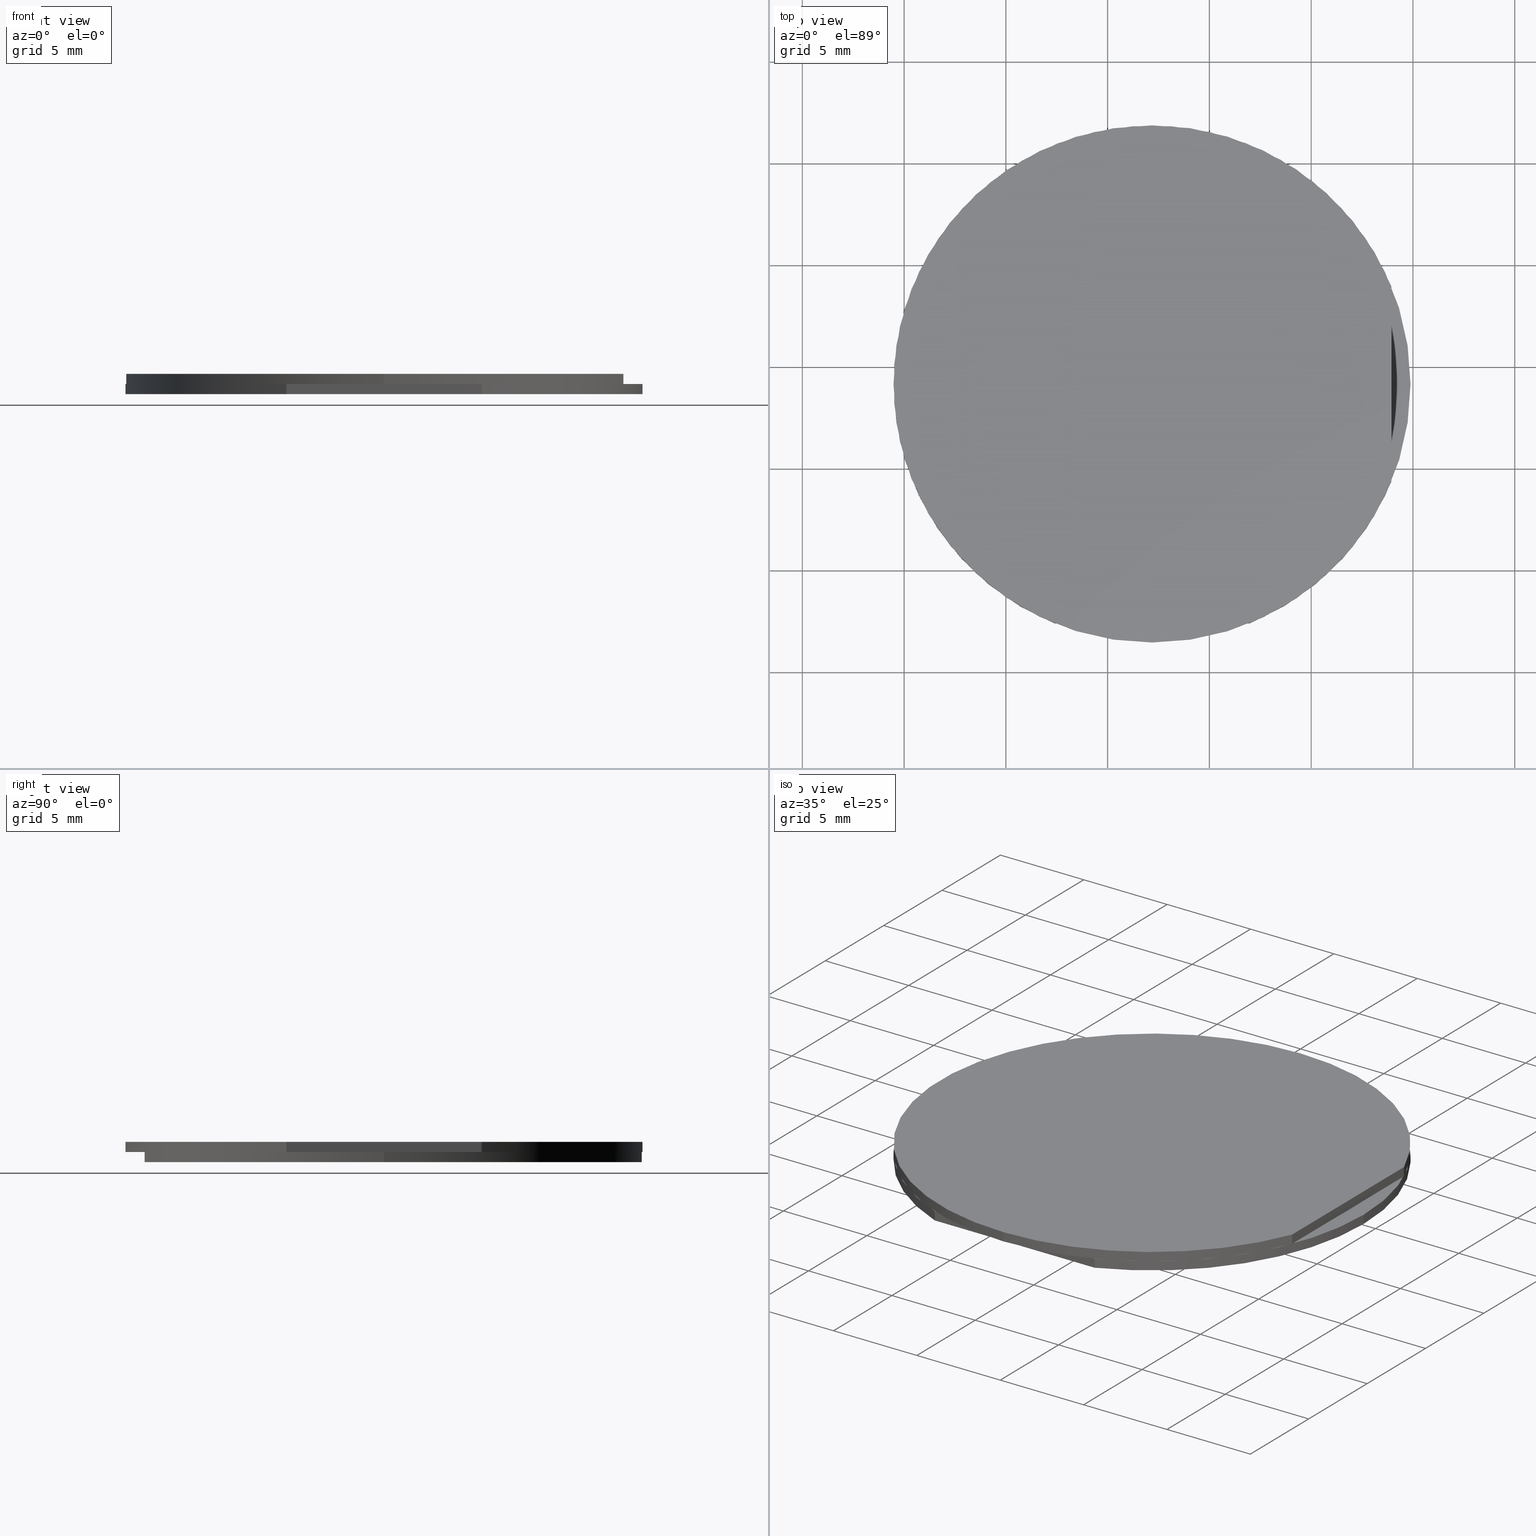
[diagram: canonical four-view strip — front | top / right | iso, engineering-drawing reading convention]
A machine part, canonical four-view strip (front | top / right | iso — engineering-drawing reading convention). The complete STEP part file that produces these views, byte-faithful:
ISO-10303-21;
HEADER;
FILE_DESCRIPTION (( 'STEP AP214' ),
    '1' );
FILE_NAME ('334001.STEP',
    '2020-08-21T08:45:31',
    ( '' ),
    ( '' ),
    'SwSTEP 2.0',
    'SolidWorks 2019',
    '' );
FILE_SCHEMA (( 'AUTOMOTIVE_DESIGN' ));
ENDSEC;

DATA;
#1 = DIRECTION ( 'NONE',  ( 1.000000000000000000, 0.0000000000000000000, 0.0000000000000000000 ) ) ;
#2 = SURFACE_STYLE_USAGE ( .BOTH. , #423 ) ;
#3 = VERTEX_POINT ( 'NONE', #303 ) ;
#4 = COLOUR_RGB ( '',1.000000000000000000, 1.000000000000000000, 1.000000000000000000 ) ;
#5 =( NAMED_UNIT ( * ) PLANE_ANGLE_UNIT ( ) SI_UNIT ( $, .RADIAN. ) );
#6 = CARTESIAN_POINT ( 'NONE',  ( 23.93957565082418171, -6.717240688047030339, 3.986184743181585777 ) ) ;
#7 = PRODUCT ( '334001', '334001', '', ( #403 ) ) ;
#8 = COLOUR_RGB ( '',1.000000000000000000, 1.000000000000000000, 1.000000000000000000 ) ;
#9 = COLOUR_RGB ( '',1.000000000000000000, 1.000000000000000000, 1.000000000000000000 ) ;
#10 = SURFACE_STYLE_FILL_AREA ( #273 ) ;
#11 = PRESENTATION_STYLE_ASSIGNMENT (( #435 ) ) ;
#12 = DIRECTION ( 'NONE',  ( 0.0000000000000000000, 0.0000000000000000000, 1.000000000000000000 ) ) ;
#13 = PLANE ( 'NONE',  #164 ) ;
#14 = DIRECTION ( 'NONE',  ( -1.365923996832131609E-16, -1.000000000000000000, 0.0000000000000000000 ) ) ;
#15 = COLOUR_RGB ( '',1.000000000000000000, 1.000000000000000000, 1.000000000000000000 ) ;
#16 = MECHANICAL_DESIGN_GEOMETRIC_PRESENTATION_REPRESENTATION (  '', ( #94 ), #183 ) ;
#17 = CARTESIAN_POINT ( 'NONE',  ( 12.17957565082418014, -0.8299026143560144231, 4.486184743181586221 ) ) ;
#18 = CARTESIAN_POINT ( 'NONE',  ( 12.17957565082418014, -0.8299026143560144231, 4.486184743181586221 ) ) ;
#19 = DIRECTION ( 'NONE',  ( 1.000000000000000000, 0.0000000000000000000, 0.0000000000000000000 ) ) ;
#20 = DIRECTION ( 'NONE',  ( 0.0000000000000000000, 0.0000000000000000000, 1.000000000000000000 ) ) ;
#21 = CARTESIAN_POINT ( 'NONE',  ( 24.87957565082417943, -0.8299026143560128688, 3.986184743181585777 ) ) ;
#22 = PLANE ( 'NONE',  #499 ) ;
#23 = ADVANCED_FACE ( 'NONE', ( #385 ), #222, .T. ) ;
#24 = DIRECTION ( 'NONE',  ( 0.0000000000000000000, -0.0000000000000000000, -1.000000000000000000 ) ) ;
#25 = CYLINDRICAL_SURFACE ( 'NONE', #237, 12.69999999999999929 ) ;
#26 = CARTESIAN_POINT ( 'NONE',  ( 12.17957565082418014, -0.8299026143560144231, 3.986184743181585777 ) ) ;
#27 = STYLED_ITEM ( 'NONE', ( #465 ), #57 ) ;
#28 = PRESENTATION_LAYER_ASSIGNMENT (  '', '', ( #211 ) ) ;
#29 = SURFACE_STYLE_USAGE ( .BOTH. , #78 ) ;
#30 = DIRECTION ( 'NONE',  ( 0.0000000000000000000, 0.0000000000000000000, 1.000000000000000000 ) ) ;
#31 =( NAMED_UNIT ( * ) SI_UNIT ( $, .STERADIAN. ) SOLID_ANGLE_UNIT ( ) );
#32 = DIRECTION ( 'NONE',  ( -1.000000000000000000, 0.0000000000000000000, 0.0000000000000000000 ) ) ;
#33 = EDGE_CURVE ( 'NONE', #172, #124, #177, .T. ) ;
#34 = ORIENTED_EDGE ( 'NONE', *, *, #255, .T. ) ;
#35 = FILL_AREA_STYLE_COLOUR ( '', #467 ) ;
#36 = EDGE_CURVE ( 'NONE', #44, #383, #559, .T. ) ;
#37 = VERTEX_POINT ( 'NONE', #345 ) ;
#38 = CARTESIAN_POINT ( 'NONE',  ( 23.93957565082418171, 3.965136488717075469, 4.486184743181586221 ) ) ;
#39 = VECTOR ( 'NONE', #156, 1000.000000000000000 ) ;
#40 = CLOSED_SHELL ( 'NONE', ( #23, #413, #409, #554, #168, #76 ) ) ;
#41 = ORIENTED_EDGE ( 'NONE', *, *, #81, .T. ) ;
#42 = VERTEX_POINT ( 'NONE', #308 ) ;
#43 = EDGE_CURVE ( 'NONE', #44, #133, #136, .T. ) ;
#44 = VERTEX_POINT ( 'NONE', #350 ) ;
#45 = SURFACE_SIDE_STYLE ('',( #91 ) ) ;
#46 = MECHANICAL_DESIGN_GEOMETRIC_PRESENTATION_REPRESENTATION (  '', ( #412 ), #376 ) ;
#47 = DIRECTION ( 'NONE',  ( 1.000000000000000000, 0.0000000000000000000, -0.0000000000000000000 ) ) ;
#48 = PRODUCT_RELATED_PRODUCT_CATEGORY ( 'part', '', ( #7 ) ) ;
#49 = ORIENTED_EDGE ( 'NONE', *, *, #447, .T. ) ;
#50 =( NAMED_UNIT ( * ) SI_UNIT ( $, .STERADIAN. ) SOLID_ANGLE_UNIT ( ) );
#51 = FILL_AREA_STYLE_COLOUR ( '', #103 ) ;
#52 = VECTOR ( 'NONE', #453, 1000.000000000000000 ) ;
#53 = ADVANCED_BREP_SHAPE_REPRESENTATION ( '334001', ( #111, #466, #60 ), #266 ) ;
#54 =( NAMED_UNIT ( * ) PLANE_ANGLE_UNIT ( ) SI_UNIT ( $, .RADIAN. ) );
#55 = CIRCLE ( 'NONE', #543, 12.69999999999999929 ) ;
#56 = DIRECTION ( 'NONE',  ( 0.0000000000000000000, 0.0000000000000000000, 1.000000000000000000 ) ) ;
#57 = ADVANCED_FACE ( 'NONE', ( #471 ), #101, .F. ) ;
#58 = DIRECTION ( 'NONE',  ( -0.0000000000000000000, -0.0000000000000000000, -1.000000000000000000 ) ) ;
#59 = VECTOR ( 'NONE', #544, 1000.000000000000000 ) ;
#60 = AXIS2_PLACEMENT_3D ( 'NONE', #408, #394, #19 ) ;
#61 = DIRECTION ( 'NONE',  ( 0.0000000000000000000, 0.0000000000000000000, 1.000000000000000000 ) ) ;
#62 = CIRCLE ( 'NONE', #249, 12.69999999999999929 ) ;
#63 = LINE ( 'NONE', #374, #275 ) ;
#64 =( NAMED_UNIT ( * ) SI_UNIT ( $, .STERADIAN. ) SOLID_ANGLE_UNIT ( ) );
#65 = EDGE_CURVE ( 'NONE', #551, #133, #62, .T. ) ;
#66 = SURFACE_STYLE_FILL_AREA ( #483 ) ;
#67 = UNCERTAINTY_MEASURE_WITH_UNIT (LENGTH_MEASURE( 1.000000000000000082E-05 ), #457, 'distance_accuracy_value', 'NONE');
#68 = PRESENTATION_STYLE_ASSIGNMENT (( #29 ) ) ;
#69 = CARTESIAN_POINT ( 'NONE',  ( 12.17957565082418014, -12.58990261435601354, 3.486184743181585333 ) ) ;
#70 = DIRECTION ( 'NONE',  ( 0.0000000000000000000, 0.0000000000000000000, 1.000000000000000000 ) ) ;
#71 = CYLINDRICAL_SURFACE ( 'NONE', #323, 12.69999999999999929 ) ;
#72 = CIRCLE ( 'NONE', #144, 12.69999999999999929 ) ;
#73 = CARTESIAN_POINT ( 'NONE',  ( 12.17957565082418014, -0.8299026143560144231, 3.486184743181585333 ) ) ;
#74 = FILL_AREA_STYLE_COLOUR ( '', #307 ) ;
#75 = MECHANICAL_DESIGN_GEOMETRIC_PRESENTATION_REPRESENTATION (  '', ( #189 ), #140 ) ;
#76 = ADVANCED_FACE ( 'NONE', ( #348 ), #139, .F. ) ;
#77 = PRESENTATION_LAYER_ASSIGNMENT (  '', '', ( #27 ) ) ;
#78 = SURFACE_SIDE_STYLE ('',( #166 ) ) ;
#79 =( NAMED_UNIT ( * ) PLANE_ANGLE_UNIT ( ) SI_UNIT ( $, .RADIAN. ) );
#80 = ORIENTED_EDGE ( 'NONE', *, *, #402, .T. ) ;
#81 = EDGE_CURVE ( 'NONE', #42, #461, #181, .T. ) ;
#82 = CARTESIAN_POINT ( 'NONE',  ( 23.93957565082418171, -5.624941717429107868, 4.486184743181586221 ) ) ;
#83 = ORIENTED_EDGE ( 'NONE', *, *, #518, .F. ) ;
#84 = DIRECTION ( 'NONE',  ( 0.0000000000000000000, 0.0000000000000000000, 1.000000000000000000 ) ) ;
#85 = ORIENTED_EDGE ( 'NONE', *, *, #36, .T. ) ;
#86 = LINE ( 'NONE', #38, #52 ) ;
#87 = STYLED_ITEM ( 'NONE', ( #231 ), #466 ) ;
#88 = ORIENTED_EDGE ( 'NONE', *, *, #369, .F. ) ;
#89 = DIRECTION ( 'NONE',  ( 1.110223024625156294E-16, 1.000000000000000000, 0.0000000000000000000 ) ) ;
#90 = ORIENTED_EDGE ( 'NONE', *, *, #106, .T. ) ;
#91 = SURFACE_STYLE_FILL_AREA ( #553 ) ;
#92 = CARTESIAN_POINT ( 'NONE',  ( 6.292237577133167115, -12.58990261435601354, 3.986184743181585777 ) ) ;
#93 = EDGE_LOOP ( 'NONE', ( #449, #49, #247, #462 ) ) ;
#94 = STYLED_ITEM ( 'NONE', ( #517 ), #23 ) ;
#95 = DIRECTION ( 'NONE',  ( 0.0000000000000000000, -0.0000000000000000000, -1.000000000000000000 ) ) ;
#96 = PRESENTATION_LAYER_ASSIGNMENT (  '', '', ( #541 ) ) ;
#97 = DIRECTION ( 'NONE',  ( -1.000000000000000000, 1.110223024625156294E-16, 0.0000000000000000000 ) ) ;
#98 =( LENGTH_UNIT ( ) NAMED_UNIT ( * ) SI_UNIT ( .MILLI., .METRE. ) );
#99 = FILL_AREA_STYLE ('',( #519 ) ) ;
#100 = PRESENTATION_STYLE_ASSIGNMENT (( #472 ) ) ;
#101 = PLANE ( 'NONE',  #147 ) ;
#102 = STYLED_ITEM ( 'NONE', ( #100 ), #473 ) ;
#103 = COLOUR_RGB ( '',1.000000000000000000, 1.000000000000000000, 1.000000000000000000 ) ;
#104 =( NAMED_UNIT ( * ) PLANE_ANGLE_UNIT ( ) SI_UNIT ( $, .RADIAN. ) );
#105 =( GEOMETRIC_REPRESENTATION_CONTEXT ( 3 ) GLOBAL_UNCERTAINTY_ASSIGNED_CONTEXT ( ( #448 ) ) GLOBAL_UNIT_ASSIGNED_CONTEXT ( ( #316, #281, #397 ) ) REPRESENTATION_CONTEXT ( 'NONE', 'WORKASPACE' ) );
#106 = EDGE_CURVE ( 'NONE', #295, #417, #152, .T. ) ;
#107 = FILL_AREA_STYLE ('',( #477 ) ) ;
#108 =( NAMED_UNIT ( * ) PLANE_ANGLE_UNIT ( ) SI_UNIT ( $, .RADIAN. ) );
#109 = DIRECTION ( 'NONE',  ( 0.0000000000000000000, 0.0000000000000000000, 1.000000000000000000 ) ) ;
#110 = DIRECTION ( 'NONE',  ( -1.000000000000000000, 0.0000000000000000000, 0.0000000000000000000 ) ) ;
#111 = MANIFOLD_SOLID_BREP ( '��Ƭ-1-solid1', #238 ) ;
#112 = PRESENTATION_STYLE_ASSIGNMENT (( #482 ) ) ;
#113 = PRESENTATION_LAYER_ASSIGNMENT (  '', '', ( #497 ) ) ;
#114 = LINE ( 'NONE', #69, #182 ) ;
#115 = COLOUR_RGB ( '',1.000000000000000000, 1.000000000000000000, 1.000000000000000000 ) ;
#116 = CARTESIAN_POINT ( 'NONE',  ( 12.17957565082418014, -0.8299026143560144231, 3.986184743181585777 ) ) ;
#117 = UNCERTAINTY_MEASURE_WITH_UNIT (LENGTH_MEASURE( 1.000000000000000082E-05 ), #460, 'distance_accuracy_value', 'NONE');
#118 = CARTESIAN_POINT ( 'NONE',  ( 12.17957565082418014, 11.87009738564398553, 4.486184743181586221 ) ) ;
#119 = FILL_AREA_STYLE ('',( #161 ) ) ;
#120 = SURFACE_STYLE_USAGE ( .BOTH. , #242 ) ;
#121 = EDGE_LOOP ( 'NONE', ( #137, #419, #243, #546 ) ) ;
#122 = MECHANICAL_DESIGN_GEOMETRIC_PRESENTATION_REPRESENTATION (  '', ( #541 ), #131 ) ;
#123 = SURFACE_STYLE_FILL_AREA ( #119 ) ;
#124 = VERTEX_POINT ( 'NONE', #195 ) ;
#125 = EDGE_LOOP ( 'NONE', ( #411, #174, #34, #373 ) ) ;
#126 = SURFACE_SIDE_STYLE ('',( #332 ) ) ;
#127 = ORIENTED_EDGE ( 'NONE', *, *, #297, .T. ) ;
#128 = SURFACE_STYLE_USAGE ( .BOTH. , #508 ) ;
#129 = PRESENTATION_LAYER_ASSIGNMENT (  '', '', ( #87 ) ) ;
#130 = ORIENTED_EDGE ( 'NONE', *, *, #65, .T. ) ;
#131 =( GEOMETRIC_REPRESENTATION_CONTEXT ( 3 ) GLOBAL_UNCERTAINTY_ASSIGNED_CONTEXT ( ( #356 ) ) GLOBAL_UNIT_ASSIGNED_CONTEXT ( ( #358, #239, #31 ) ) REPRESENTATION_CONTEXT ( 'NONE', 'WORKASPACE' ) );
#132 = CIRCLE ( 'NONE', #154, 12.69999999999999929 ) ;
#133 = VERTEX_POINT ( 'NONE', #393 ) ;
#134 =( NAMED_UNIT ( * ) SI_UNIT ( $, .STERADIAN. ) SOLID_ANGLE_UNIT ( ) );
#135 = ORIENTED_EDGE ( 'NONE', *, *, #447, .F. ) ;
#136 = LINE ( 'NONE', #92, #324 ) ;
#137 = ORIENTED_EDGE ( 'NONE', *, *, #322, .F. ) ;
#138 =( LENGTH_UNIT ( ) NAMED_UNIT ( * ) SI_UNIT ( .MILLI., .METRE. ) );
#139 = PLANE ( 'NONE',  #190 ) ;
#140 =( GEOMETRIC_REPRESENTATION_CONTEXT ( 3 ) GLOBAL_UNCERTAINTY_ASSIGNED_CONTEXT ( ( #67 ) ) GLOBAL_UNIT_ASSIGNED_CONTEXT ( ( #457, #301, #463 ) ) REPRESENTATION_CONTEXT ( 'NONE', 'WORKASPACE' ) );
#141 = STYLED_ITEM ( 'NONE', ( #192 ), #111 ) ;
#142 = SURFACE_STYLE_FILL_AREA ( #262 ) ;
#143 = DIRECTION ( 'NONE',  ( 1.000000000000000000, 0.0000000000000000000, 0.0000000000000000000 ) ) ;
#144 = AXIS2_PLACEMENT_3D ( 'NONE', #395, #538, #196 ) ;
#145 = CARTESIAN_POINT ( 'NONE',  ( 12.17957565082418014, -0.8299026143560144231, 3.986184743181585777 ) ) ;
#146 = SURFACE_STYLE_FILL_AREA ( #99 ) ;
#147 = AXIS2_PLACEMENT_3D ( 'NONE', #179, #12, #47 ) ;
#148 = UNCERTAINTY_MEASURE_WITH_UNIT (LENGTH_MEASURE( 1.000000000000000082E-05 ), #98, 'distance_accuracy_value', 'NONE');
#149 = SURFACE_SIDE_STYLE ('',( #204 ) ) ;
#150 = SURFACE_STYLE_FILL_AREA ( #361 ) ;
#151 = CARTESIAN_POINT ( 'NONE',  ( 12.17957565082418014, -0.8299026143560144231, 3.986184743181585777 ) ) ;
#152 = CIRCLE ( 'NONE', #456, 12.69999999999999929 ) ;
#153 = SURFACE_STYLE_USAGE ( .BOTH. , #233 ) ;
#154 = AXIS2_PLACEMENT_3D ( 'NONE', #73, #491, #440 ) ;
#155 =( NAMED_UNIT ( * ) PLANE_ANGLE_UNIT ( ) SI_UNIT ( $, .RADIAN. ) );
#156 = DIRECTION ( 'NONE',  ( -0.0000000000000000000, -0.0000000000000000000, -1.000000000000000000 ) ) ;
#157 = DIRECTION ( 'NONE',  ( 1.365923996832131609E-16, 1.000000000000000000, 0.0000000000000000000 ) ) ;
#158 = DIRECTION ( 'NONE',  ( 1.000000000000000000, 0.0000000000000000000, -0.0000000000000000000 ) ) ;
#159 =( LENGTH_UNIT ( ) NAMED_UNIT ( * ) SI_UNIT ( .MILLI., .METRE. ) );
#160 = EDGE_LOOP ( 'NONE', ( #341, #446, #496, #127 ) ) ;
#161 = FILL_AREA_STYLE_COLOUR ( '', #4 ) ;
#162 = AXIS2_PLACEMENT_3D ( 'NONE', #526, #188, #14 ) ;
#163 = EDGE_LOOP ( 'NONE', ( #337, #338, #135, #294 ) ) ;
#164 = AXIS2_PLACEMENT_3D ( 'NONE', #388, #282, #158 ) ;
#165 = PRESENTATION_STYLE_ASSIGNMENT (( #128 ) ) ;
#166 = SURFACE_STYLE_FILL_AREA ( #375 ) ;
#167 = ORIENTED_EDGE ( 'NONE', *, *, #406, .T. ) ;
#168 = ADVANCED_FACE ( 'NONE', ( #424 ), #22, .F. ) ;
#169 = ORIENTED_EDGE ( 'NONE', *, *, #322, .T. ) ;
#170 = CARTESIAN_POINT ( 'NONE',  ( -0.5204243491758187012, -0.8299026143560144231, 3.986184743181585777 ) ) ;
#171 = MECHANICAL_DESIGN_GEOMETRIC_PRESENTATION_REPRESENTATION (  '', ( #537 ), #410 ) ;
#172 = VERTEX_POINT ( 'NONE', #433 ) ;
#173 = SURFACE_STYLE_USAGE ( .BOTH. , #126 ) ;
#174 = ORIENTED_EDGE ( 'NONE', *, *, #351, .T. ) ;
#175 = MECHANICAL_DESIGN_GEOMETRIC_PRESENTATION_REPRESENTATION (  '', ( #27 ), #478 ) ;
#176 = SURFACE_STYLE_USAGE ( .BOTH. , #257 ) ;
#177 = LINE ( 'NONE', #346, #487 ) ;
#178 = EDGE_CURVE ( 'NONE', #334, #124, #427, .T. ) ;
#179 = CARTESIAN_POINT ( 'NONE',  ( 12.17957565082418014, -0.8299026143560144231, 3.486184743181585333 ) ) ;
#180 = CARTESIAN_POINT ( 'NONE',  ( 12.17957565082418014, -0.8299026143560144231, 3.986184743181585777 ) ) ;
#181 = LINE ( 'NONE', #389, #498 ) ;
#182 = VECTOR ( 'NONE', #396, 1000.000000000000000 ) ;
#183 =( GEOMETRIC_REPRESENTATION_CONTEXT ( 3 ) GLOBAL_UNCERTAINTY_ASSIGNED_CONTEXT ( ( #391 ) ) GLOBAL_UNIT_ASSIGNED_CONTEXT ( ( #138, #5, #520 ) ) REPRESENTATION_CONTEXT ( 'NONE', 'WORKASPACE' ) );
#184 =( NAMED_UNIT ( * ) SI_UNIT ( $, .STERADIAN. ) SOLID_ANGLE_UNIT ( ) );
#185 = FILL_AREA_STYLE ('',( #51 ) ) ;
#186 = COLOUR_RGB ( '',1.000000000000000000, 1.000000000000000000, 1.000000000000000000 ) ;
#187 = DIRECTION ( 'NONE',  ( 1.365923996832131609E-16, 1.000000000000000000, 0.0000000000000000000 ) ) ;
#188 = DIRECTION ( 'NONE',  ( 0.0000000000000000000, -0.0000000000000000000, -1.000000000000000000 ) ) ;
#189 = STYLED_ITEM ( 'NONE', ( #510 ), #516 ) ;
#190 = AXIS2_PLACEMENT_3D ( 'NONE', #6, #97, #522 ) ;
#191 = FACE_OUTER_BOUND ( 'NONE', #125, .T. ) ;
#192 = PRESENTATION_STYLE_ASSIGNMENT (( #199 ) ) ;
#193 = UNCERTAINTY_MEASURE_WITH_UNIT (LENGTH_MEASURE( 1.000000000000000082E-05 ), #209, 'distance_accuracy_value', 'NONE');
#194 = DIRECTION ( 'NONE',  ( -0.0000000000000000000, -0.0000000000000000000, -1.000000000000000000 ) ) ;
#195 = CARTESIAN_POINT ( 'NONE',  ( 23.93957565082418171, -5.624941717429107868, 4.486184743181586221 ) ) ;
#196 = DIRECTION ( 'NONE',  ( 1.000000000000000000, 0.0000000000000000000, 0.0000000000000000000 ) ) ;
#197 = PRESENTATION_LAYER_ASSIGNMENT (  '', '', ( #537 ) ) ;
#198 = DIRECTION ( 'NONE',  ( -1.365923996832131609E-16, -1.000000000000000000, 0.0000000000000000000 ) ) ;
#199 = SURFACE_STYLE_USAGE ( .BOTH. , #149 ) ;
#200 = CARTESIAN_POINT ( 'NONE',  ( 7.384536547751088698, -12.58990261435601354, 3.486184743181585333 ) ) ;
#201 = AXIS2_PLACEMENT_3D ( 'NONE', #18, #61, #327 ) ;
#202 = STYLED_ITEM ( 'NONE', ( #68 ), #315 ) ;
#203 = LINE ( 'NONE', #21, #59 ) ;
#204 = SURFACE_STYLE_FILL_AREA ( #107 ) ;
#205 = FILL_AREA_STYLE_COLOUR ( '', #8 ) ;
#206 = UNCERTAINTY_MEASURE_WITH_UNIT (LENGTH_MEASURE( 1.000000000000000082E-05 ), #398, 'distance_accuracy_value', 'NONE');
#207 = PLANE ( 'NONE',  #399 ) ;
#208 = ORIENTED_EDGE ( 'NONE', *, *, #406, .F. ) ;
#209 =( LENGTH_UNIT ( ) NAMED_UNIT ( * ) SI_UNIT ( .MILLI., .METRE. ) );
#210 = ORIENTED_EDGE ( 'NONE', *, *, #310, .F. ) ;
#211 = STYLED_ITEM ( 'NONE', ( #319 ), #53 ) ;
#212 = PRESENTATION_LAYER_ASSIGNMENT (  '', '', ( #141 ) ) ;
#213 = DIRECTION ( 'NONE',  ( 0.0000000000000000000, -0.0000000000000000000, 1.000000000000000000 ) ) ;
#214 = FILL_AREA_STYLE_COLOUR ( '', #115 ) ;
#215 = VERTEX_POINT ( 'NONE', #360 ) ;
#216 =( GEOMETRIC_REPRESENTATION_CONTEXT ( 3 ) GLOBAL_UNCERTAINTY_ASSIGNED_CONTEXT ( ( #502 ) ) GLOBAL_UNIT_ASSIGNED_CONTEXT ( ( #364, #155, #503 ) ) REPRESENTATION_CONTEXT ( 'NONE', 'WORKASPACE' ) );
#217 = SURFACE_STYLE_FILL_AREA ( #339 ) ;
#218 = EDGE_CURVE ( 'NONE', #172, #3, #513, .T. ) ;
#219 = CIRCLE ( 'NONE', #527, 12.69999999999999929 ) ;
#220 = DIRECTION ( 'NONE',  ( 0.0000000000000000000, 0.0000000000000000000, 1.000000000000000000 ) ) ;
#221 = STYLED_ITEM ( 'NONE', ( #263 ), #76 ) ;
#222 = CYLINDRICAL_SURFACE ( 'NONE', #342, 12.69999999999999929 ) ;
#223 = CARTESIAN_POINT ( 'NONE',  ( 12.17957565082418014, -0.8299026143560144231, 3.986184743181585777 ) ) ;
#224 = DIRECTION ( 'NONE',  ( -1.365923996832131609E-16, -1.000000000000000000, 0.0000000000000000000 ) ) ;
#225 =( LENGTH_UNIT ( ) NAMED_UNIT ( * ) SI_UNIT ( .MILLI., .METRE. ) );
#226 = EDGE_CURVE ( 'NONE', #500, #295, #55, .T. ) ;
#227 = STYLED_ITEM ( 'NONE', ( #367 ), #480 ) ;
#228 = AXIS2_PLACEMENT_3D ( 'NONE', #535, #436, #321 ) ;
#229 = CARTESIAN_POINT ( 'NONE',  ( 12.17957565082417837, -13.52990261435601305, 4.486184743181586221 ) ) ;
#230 = LINE ( 'NONE', #311, #438 ) ;
#231 = PRESENTATION_STYLE_ASSIGNMENT (( #120 ) ) ;
#232 = SURFACE_SIDE_STYLE ('',( #475 ) ) ;
#233 = SURFACE_SIDE_STYLE ('',( #150 ) ) ;
#234 = DIRECTION ( 'NONE',  ( -0.0000000000000000000, 1.000000000000000000, 0.0000000000000000000 ) ) ;
#235 = CARTESIAN_POINT ( 'NONE',  ( 12.17957565082418014, -0.8299026143560144231, 3.986184743181585777 ) ) ;
#236 = FACE_OUTER_BOUND ( 'NONE', #163, .T. ) ;
#237 = AXIS2_PLACEMENT_3D ( 'NONE', #276, #284, #198 ) ;
#238 = CLOSED_SHELL ( 'NONE', ( #318, #516, #480, #473, #57, #315 ) ) ;
#239 =( NAMED_UNIT ( * ) PLANE_ANGLE_UNIT ( ) SI_UNIT ( $, .RADIAN. ) );
#240 = DIRECTION ( 'NONE',  ( 0.0000000000000000000, -0.0000000000000000000, 1.000000000000000000 ) ) ;
#241 = STYLED_ITEM ( 'NONE', ( #11 ), #409 ) ;
#242 = SURFACE_SIDE_STYLE ('',( #495 ) ) ;
#243 = ORIENTED_EDGE ( 'NONE', *, *, #226, .T. ) ;
#244 = ORIENTED_EDGE ( 'NONE', *, *, #277, .T. ) ;
#245 =( NAMED_UNIT ( * ) SI_UNIT ( $, .STERADIAN. ) SOLID_ANGLE_UNIT ( ) );
#246 = COLOUR_RGB ( '',1.000000000000000000, 1.000000000000000000, 1.000000000000000000 ) ;
#247 = ORIENTED_EDGE ( 'NONE', *, *, #106, .F. ) ;
#248 = CYLINDRICAL_SURFACE ( 'NONE', #298, 12.69999999999999929 ) ;
#249 = AXIS2_PLACEMENT_3D ( 'NONE', #223, #56, #474 ) ;
#250 = UNCERTAINTY_MEASURE_WITH_UNIT (LENGTH_MEASURE( 1.000000000000000082E-05 ), #279, 'distance_accuracy_value', 'NONE');
#251 = ORIENTED_EDGE ( 'NONE', *, *, #523, .T. ) ;
#252 = PLANE ( 'NONE',  #511 ) ;
#253 = ORIENTED_EDGE ( 'NONE', *, *, #369, .T. ) ;
#254 = FILL_AREA_STYLE_COLOUR ( '', #425 ) ;
#255 = EDGE_CURVE ( 'NONE', #37, #461, #514, .T. ) ;
#256 = ORIENTED_EDGE ( 'NONE', *, *, #518, .T. ) ;
#257 = SURFACE_SIDE_STYLE ('',( #142 ) ) ;
#258 =( NAMED_UNIT ( * ) PLANE_ANGLE_UNIT ( ) SI_UNIT ( $, .RADIAN. ) );
#259 =( GEOMETRIC_REPRESENTATION_CONTEXT ( 3 ) GLOBAL_UNCERTAINTY_ASSIGNED_CONTEXT ( ( #250 ) ) GLOBAL_UNIT_ASSIGNED_CONTEXT ( ( #279, #430, #320 ) ) REPRESENTATION_CONTEXT ( 'NONE', 'WORKASPACE' ) );
#260 = MECHANICAL_DESIGN_GEOMETRIC_PRESENTATION_REPRESENTATION (  '', ( #221 ), #420 ) ;
#261 = ORIENTED_EDGE ( 'NONE', *, *, #33, .T. ) ;
#262 = FILL_AREA_STYLE ('',( #515 ) ) ;
#263 = PRESENTATION_STYLE_ASSIGNMENT (( #2 ) ) ;
#264 = MECHANICAL_DESIGN_GEOMETRIC_PRESENTATION_REPRESENTATION (  '', ( #202 ), #216 ) ;
#265 = PRESENTATION_LAYER_ASSIGNMENT (  '', '', ( #102 ) ) ;
#266 =( GEOMETRIC_REPRESENTATION_CONTEXT ( 3 ) GLOBAL_UNCERTAINTY_ASSIGNED_CONTEXT ( ( #439 ) ) GLOBAL_UNIT_ASSIGNED_CONTEXT ( ( #501, #505, #134 ) ) REPRESENTATION_CONTEXT ( 'NONE', 'WORKASPACE' ) );
#267 = FACE_OUTER_BOUND ( 'NONE', #556, .T. ) ;
#268 = CARTESIAN_POINT ( 'NONE',  ( 24.87957565082417943, -0.8299026143560128688, 3.986184743181585777 ) ) ;
#269 = VECTOR ( 'NONE', #24, 1000.000000000000000 ) ;
#270 =( NAMED_UNIT ( * ) SI_UNIT ( $, .STERADIAN. ) SOLID_ANGLE_UNIT ( ) );
#271 = FILL_AREA_STYLE_COLOUR ( '', #186 ) ;
#272 = DIRECTION ( 'NONE',  ( 1.110223024625156294E-16, 1.000000000000000000, 0.0000000000000000000 ) ) ;
#273 = FILL_AREA_STYLE ('',( #353 ) ) ;
#274 = FACE_OUTER_BOUND ( 'NONE', #512, .T. ) ;
#275 = VECTOR ( 'NONE', #84, 1000.000000000000000 ) ;
#276 = CARTESIAN_POINT ( 'NONE',  ( 12.17957565082418014, -0.8299026143560144231, 4.486184743181586221 ) ) ;
#277 = EDGE_CURVE ( 'NONE', #3, #215, #493, .T. ) ;
#278 = PRODUCT_DEFINITION_CONTEXT ( 'detailed design', #490, 'design' ) ;
#279 =( LENGTH_UNIT ( ) NAMED_UNIT ( * ) SI_UNIT ( .MILLI., .METRE. ) );
#280 =( LENGTH_UNIT ( ) NAMED_UNIT ( * ) SI_UNIT ( .MILLI., .METRE. ) );
#281 =( NAMED_UNIT ( * ) PLANE_ANGLE_UNIT ( ) SI_UNIT ( $, .RADIAN. ) );
#282 = DIRECTION ( 'NONE',  ( 0.0000000000000000000, 0.0000000000000000000, 1.000000000000000000 ) ) ;
#283 = VECTOR ( 'NONE', #194, 1000.000000000000000 ) ;
#284 = DIRECTION ( 'NONE',  ( 0.0000000000000000000, -0.0000000000000000000, -1.000000000000000000 ) ) ;
#285 = DIRECTION ( 'NONE',  ( 0.0000000000000000000, -0.0000000000000000000, 1.000000000000000000 ) ) ;
#286 = CARTESIAN_POINT ( 'NONE',  ( 24.87957565082417943, -0.8299026143560128688, 3.486184743181585333 ) ) ;
#287 = PRESENTATION_LAYER_ASSIGNMENT (  '', '', ( #241 ) ) ;
#288 = SURFACE_STYLE_USAGE ( .BOTH. , #400 ) ;
#289 = CIRCLE ( 'NONE', #486, 12.69999999999999929 ) ;
#290 = PRESENTATION_LAYER_ASSIGNMENT (  '', '', ( #221 ) ) ;
#291 = ORIENTED_EDGE ( 'NONE', *, *, #81, .F. ) ;
#292 = SHAPE_DEFINITION_REPRESENTATION ( #476, #53 ) ;
#293 = PRESENTATION_STYLE_ASSIGNMENT (( #288 ) ) ;
#294 = ORIENTED_EDGE ( 'NONE', *, *, #451, .F. ) ;
#295 = VERTEX_POINT ( 'NONE', #333 ) ;
#296 = CARTESIAN_POINT ( 'NONE',  ( 12.17957565082418014, -0.8299026143560144231, 4.486184743181586221 ) ) ;
#297 = EDGE_CURVE ( 'NONE', #507, #500, #132, .T. ) ;
#298 = AXIS2_PLACEMENT_3D ( 'NONE', #300, #421, #384 ) ;
#299 = ORIENTED_EDGE ( 'NONE', *, *, #43, .F. ) ;
#300 = CARTESIAN_POINT ( 'NONE',  ( 12.17957565082418014, -0.8299026143560144231, 3.986184743181585777 ) ) ;
#301 =( NAMED_UNIT ( * ) PLANE_ANGLE_UNIT ( ) SI_UNIT ( $, .RADIAN. ) );
#302 = ORIENTED_EDGE ( 'NONE', *, *, #542, .F. ) ;
#303 = CARTESIAN_POINT ( 'NONE',  ( 12.17957565082418014, 11.87009738564398553, 4.486184743181586221 ) ) ;
#304 = SURFACE_STYLE_USAGE ( .BOTH. , #470 ) ;
#305 = CARTESIAN_POINT ( 'NONE',  ( 12.17957565082418014, -0.8299026143560144231, 4.486184743181586221 ) ) ;
#306 = PRESENTATION_LAYER_ASSIGNMENT (  '', '', ( #94 ) ) ;
#307 = COLOUR_RGB ( '',1.000000000000000000, 1.000000000000000000, 1.000000000000000000 ) ;
#308 = CARTESIAN_POINT ( 'NONE',  ( 23.93957565082418171, 3.965136488717076357, 3.986184743181585777 ) ) ;
#309 = SURFACE_SIDE_STYLE ('',( #10 ) ) ;
#310 = EDGE_CURVE ( 'NONE', #461, #124, #336, .T. ) ;
#311 = CARTESIAN_POINT ( 'NONE',  ( 12.17957565082417837, -13.52990261435601305, 4.486184743181586221 ) ) ;
#312 = DIRECTION ( 'NONE',  ( -1.110223024625156294E-16, -1.000000000000000000, 0.0000000000000000000 ) ) ;
#313 = MECHANICAL_DESIGN_GEOMETRIC_PRESENTATION_REPRESENTATION (  '', ( #102 ), #434 ) ;
#314 = DIRECTION ( 'NONE',  ( 0.0000000000000000000, -0.0000000000000000000, -1.000000000000000000 ) ) ;
#315 = ADVANCED_FACE ( 'NONE', ( #236 ), #207, .F. ) ;
#316 =( LENGTH_UNIT ( ) NAMED_UNIT ( * ) SI_UNIT ( .MILLI., .METRE. ) );
#317 = SURFACE_SIDE_STYLE ('',( #484 ) ) ;
#318 = ADVANCED_FACE ( 'NONE', ( #548 ), #329, .T. ) ;
#319 = PRESENTATION_STYLE_ASSIGNMENT (( #368 ) ) ;
#320 =( NAMED_UNIT ( * ) SI_UNIT ( $, .STERADIAN. ) SOLID_ANGLE_UNIT ( ) );
#321 = DIRECTION ( 'NONE',  ( 1.365923996832131609E-16, 1.000000000000000000, 0.0000000000000000000 ) ) ;
#322 = EDGE_CURVE ( 'NONE', #383, #551, #72, .T. ) ;
#323 = AXIS2_PLACEMENT_3D ( 'NONE', #235, #405, #32 ) ;
#324 = VECTOR ( 'NONE', #426, 1000.000000000000000 ) ;
#325 = LINE ( 'NONE', #489, #39 ) ;
#326 = UNCERTAINTY_MEASURE_WITH_UNIT (LENGTH_MEASURE( 1.000000000000000082E-05 ), #524, 'distance_accuracy_value', 'NONE');
#327 = DIRECTION ( 'NONE',  ( 1.365923996832131609E-16, 1.000000000000000000, 0.0000000000000000000 ) ) ;
#328 = APPLICATION_PROTOCOL_DEFINITION ( 'draft international standard', 'automotive_design', 1998, #490 ) ;
#329 = CYLINDRICAL_SURFACE ( 'NONE', #382, 12.69999999999999929 ) ;
#330 = FILL_AREA_STYLE ('',( #545 ) ) ;
#331 = ORIENTED_EDGE ( 'NONE', *, *, #542, .T. ) ;
#332 = SURFACE_STYLE_FILL_AREA ( #371 ) ;
#333 = CARTESIAN_POINT ( 'NONE',  ( -0.5204243491758187012, -0.8299026143560144231, 3.486184743181585333 ) ) ;
#334 = VERTEX_POINT ( 'NONE', #229 ) ;
#335 =( NAMED_UNIT ( * ) PLANE_ANGLE_UNIT ( ) SI_UNIT ( $, .RADIAN. ) );
#336 = LINE ( 'NONE', #82, #459 ) ;
#337 = ORIENTED_EDGE ( 'NONE', *, *, #43, .T. ) ;
#338 = ORIENTED_EDGE ( 'NONE', *, *, #523, .F. ) ;
#339 = FILL_AREA_STYLE ('',( #254 ) ) ;
#340 = COLOUR_RGB ( '',1.000000000000000000, 1.000000000000000000, 1.000000000000000000 ) ;
#341 = ORIENTED_EDGE ( 'NONE', *, *, #450, .F. ) ;
#342 = AXIS2_PLACEMENT_3D ( 'NONE', #305, #95, #224 ) ;
#343 = PRODUCT_DEFINITION_FORMATION_WITH_SPECIFIED_SOURCE ( '�κ�', '', #7, .NOT_KNOWN. ) ;
#344 = AXIS2_PLACEMENT_3D ( 'NONE', #151, #109, #359 ) ;
#345 = CARTESIAN_POINT ( 'NONE',  ( 12.17957565082417837, -13.52990261435601305, 3.986184743181585777 ) ) ;
#346 = CARTESIAN_POINT ( 'NONE',  ( 23.93957565082418171, -6.717240688047030339, 4.486184743181586221 ) ) ;
#347 = PRESENTATION_LAYER_ASSIGNMENT (  '', '', ( #227 ) ) ;
#348 = FACE_OUTER_BOUND ( 'NONE', #414, .T. ) ;
#349 =( GEOMETRIC_REPRESENTATION_CONTEXT ( 3 ) GLOBAL_UNCERTAINTY_ASSIGNED_CONTEXT ( ( #494 ) ) GLOBAL_UNIT_ASSIGNED_CONTEXT ( ( #159, #550, #64 ) ) REPRESENTATION_CONTEXT ( 'NONE', 'WORKASPACE' ) );
#350 = CARTESIAN_POINT ( 'NONE',  ( 16.97461475389727426, -12.58990261435601354, 3.986184743181585777 ) ) ;
#351 = EDGE_CURVE ( 'NONE', #334, #37, #230, .T. ) ;
#352 = DIRECTION ( 'NONE',  ( 0.0000000000000000000, 0.0000000000000000000, 1.000000000000000000 ) ) ;
#353 = FILL_AREA_STYLE_COLOUR ( '', #246 ) ;
#354 = MECHANICAL_DESIGN_GEOMETRIC_PRESENTATION_REPRESENTATION (  '', ( #241 ), #259 ) ;
#355 = CARTESIAN_POINT ( 'NONE',  ( 12.17957565082418014, -0.8299026143560144231, 3.486184743181585333 ) ) ;
#356 = UNCERTAINTY_MEASURE_WITH_UNIT (LENGTH_MEASURE( 1.000000000000000082E-05 ), #358, 'distance_accuracy_value', 'NONE');
#357 = DIRECTION ( 'NONE',  ( 1.365923996832131609E-16, 1.000000000000000000, 0.0000000000000000000 ) ) ;
#358 =( LENGTH_UNIT ( ) NAMED_UNIT ( * ) SI_UNIT ( .MILLI., .METRE. ) );
#359 = DIRECTION ( 'NONE',  ( 1.365923996832131609E-16, 1.000000000000000000, 0.0000000000000000000 ) ) ;
#360 = CARTESIAN_POINT ( 'NONE',  ( 12.17957565082418014, 11.87009738564398553, 3.986184743181585777 ) ) ;
#361 = FILL_AREA_STYLE ('',( #35 ) ) ;
#362 = CYLINDRICAL_SURFACE ( 'NONE', #162, 12.69999999999999929 ) ;
#363 = MECHANICAL_DESIGN_GEOMETRIC_PRESENTATION_REPRESENTATION (  '', ( #227 ), #558 ) ;
#364 =( LENGTH_UNIT ( ) NAMED_UNIT ( * ) SI_UNIT ( .MILLI., .METRE. ) );
#365 = AXIS2_PLACEMENT_3D ( 'NONE', #26, #366, #157 ) ;
#366 = DIRECTION ( 'NONE',  ( 0.0000000000000000000, 0.0000000000000000000, 1.000000000000000000 ) ) ;
#367 = PRESENTATION_STYLE_ASSIGNMENT (( #153 ) ) ;
#368 = SURFACE_STYLE_USAGE ( .BOTH. , #45 ) ;
#369 = EDGE_CURVE ( 'NONE', #3, #334, #219, .T. ) ;
#370 = EDGE_LOOP ( 'NONE', ( #381, #378, #253, #407 ) ) ;
#371 = FILL_AREA_STYLE ('',( #205 ) ) ;
#372 = CARTESIAN_POINT ( 'NONE',  ( 6.292237577133167115, -12.58990261435601354, 3.486184743181585333 ) ) ;
#373 = ORIENTED_EDGE ( 'NONE', *, *, #310, .T. ) ;
#374 = CARTESIAN_POINT ( 'NONE',  ( 7.384536547751088698, -12.58990261435601354, 3.986184743181585777 ) ) ;
#375 = FILL_AREA_STYLE ('',( #404 ) ) ;
#376 =( GEOMETRIC_REPRESENTATION_CONTEXT ( 3 ) GLOBAL_UNCERTAINTY_ASSIGNED_CONTEXT ( ( #117 ) ) GLOBAL_UNIT_ASSIGNED_CONTEXT ( ( #460, #335, #245 ) ) REPRESENTATION_CONTEXT ( 'NONE', 'WORKASPACE' ) );
#377 = ORIENTED_EDGE ( 'NONE', *, *, #218, .F. ) ;
#378 = ORIENTED_EDGE ( 'NONE', *, *, #218, .T. ) ;
#379 = FACE_OUTER_BOUND ( 'NONE', #370, .T. ) ;
#380 = UNCERTAINTY_MEASURE_WITH_UNIT (LENGTH_MEASURE( 1.000000000000000082E-05 ), #280, 'distance_accuracy_value', 'NONE');
#381 = ORIENTED_EDGE ( 'NONE', *, *, #33, .F. ) ;
#382 = AXIS2_PLACEMENT_3D ( 'NONE', #145, #58, #110 ) ;
#383 = VERTEX_POINT ( 'NONE', #268 ) ;
#384 = DIRECTION ( 'NONE',  ( -1.000000000000000000, 0.0000000000000000000, 0.0000000000000000000 ) ) ;
#385 = FACE_OUTER_BOUND ( 'NONE', #504, .T. ) ;
#386 = DIRECTION ( 'NONE',  ( -1.110223024625156294E-16, -1.000000000000000000, -0.0000000000000000000 ) ) ;
#387 = PRESENTATION_LAYER_ASSIGNMENT (  '', '', ( #189 ) ) ;
#388 = CARTESIAN_POINT ( 'NONE',  ( 12.17957565082418014, -0.8299026143560144231, 3.986184743181585777 ) ) ;
#389 = CARTESIAN_POINT ( 'NONE',  ( 23.93957565082418171, -0.8299026143560156443, 3.986184743181585777 ) ) ;
#390 = FILL_AREA_STYLE ('',( #271 ) ) ;
#391 = UNCERTAINTY_MEASURE_WITH_UNIT (LENGTH_MEASURE( 1.000000000000000082E-05 ), #138, 'distance_accuracy_value', 'NONE');
#392 =( NAMED_UNIT ( * ) SI_UNIT ( $, .STERADIAN. ) SOLID_ANGLE_UNIT ( ) );
#393 = CARTESIAN_POINT ( 'NONE',  ( 7.384536547751088698, -12.58990261435601354, 3.986184743181585777 ) ) ;
#394 = DIRECTION ( 'NONE',  ( 0.0000000000000000000, 0.0000000000000000000, 1.000000000000000000 ) ) ;
#395 = CARTESIAN_POINT ( 'NONE',  ( 12.17957565082418014, -0.8299026143560144231, 3.986184743181585777 ) ) ;
#396 = DIRECTION ( 'NONE',  ( -1.000000000000000000, -0.0000000000000000000, 0.0000000000000000000 ) ) ;
#397 =( NAMED_UNIT ( * ) SI_UNIT ( $, .STERADIAN. ) SOLID_ANGLE_UNIT ( ) );
#398 =( LENGTH_UNIT ( ) NAMED_UNIT ( * ) SI_UNIT ( .MILLI., .METRE. ) );
#399 = AXIS2_PLACEMENT_3D ( 'NONE', #372, #234, #240 ) ;
#400 = SURFACE_SIDE_STYLE ('',( #123 ) ) ;
#401 = DIRECTION ( 'NONE',  ( 1.000000000000000000, 0.0000000000000000000, 0.0000000000000000000 ) ) ;
#402 = EDGE_CURVE ( 'NONE', #551, #295, #488, .T. ) ;
#403 = PRODUCT_CONTEXT ( 'NONE', #525, 'mechanical' ) ;
#404 = FILL_AREA_STYLE_COLOUR ( '', #428 ) ;
#405 = DIRECTION ( 'NONE',  ( -0.0000000000000000000, -0.0000000000000000000, -1.000000000000000000 ) ) ;
#406 = EDGE_CURVE ( 'NONE', #42, #215, #416, .T. ) ;
#407 = ORIENTED_EDGE ( 'NONE', *, *, #178, .T. ) ;
#408 = CARTESIAN_POINT ( 'NONE',  ( 0.0000000000000000000, 0.0000000000000000000, 0.0000000000000000000 ) ) ;
#409 = ADVANCED_FACE ( 'NONE', ( #274 ), #362, .T. ) ;
#410 =( GEOMETRIC_REPRESENTATION_CONTEXT ( 3 ) GLOBAL_UNCERTAINTY_ASSIGNED_CONTEXT ( ( #193 ) ) GLOBAL_UNIT_ASSIGNED_CONTEXT ( ( #209, #104, #392 ) ) REPRESENTATION_CONTEXT ( 'NONE', 'WORKASPACE' ) );
#411 = ORIENTED_EDGE ( 'NONE', *, *, #178, .F. ) ;
#412 = STYLED_ITEM ( 'NONE', ( #165 ), #554 ) ;
#413 = ADVANCED_FACE ( 'NONE', ( #191 ), #25, .T. ) ;
#414 = EDGE_LOOP ( 'NONE', ( #261, #210, #291, #302 ) ) ;
#415 = APPLICATION_PROTOCOL_DEFINITION ( 'draft international standard', 'automotive_design', 1998, #525 ) ;
#416 = CIRCLE ( 'NONE', #344, 12.69999999999999929 ) ;
#417 = VERTEX_POINT ( 'NONE', #200 ) ;
#418 = UNCERTAINTY_MEASURE_WITH_UNIT (LENGTH_MEASURE( 1.000000000000000082E-05 ), #481, 'distance_accuracy_value', 'NONE');
#419 = ORIENTED_EDGE ( 'NONE', *, *, #450, .T. ) ;
#420 =( GEOMETRIC_REPRESENTATION_CONTEXT ( 3 ) GLOBAL_UNCERTAINTY_ASSIGNED_CONTEXT ( ( #454 ) ) GLOBAL_UNIT_ASSIGNED_CONTEXT ( ( #225, #54, #50 ) ) REPRESENTATION_CONTEXT ( 'NONE', 'WORKASPACE' ) );
#421 = DIRECTION ( 'NONE',  ( -0.0000000000000000000, -0.0000000000000000000, -1.000000000000000000 ) ) ;
#422 = ORIENTED_EDGE ( 'NONE', *, *, #65, .F. ) ;
#423 = SURFACE_SIDE_STYLE ('',( #146 ) ) ;
#424 = FACE_OUTER_BOUND ( 'NONE', #552, .T. ) ;
#425 = COLOUR_RGB ( '',1.000000000000000000, 1.000000000000000000, 1.000000000000000000 ) ;
#426 = DIRECTION ( 'NONE',  ( -1.000000000000000000, -0.0000000000000000000, -0.0000000000000000000 ) ) ;
#427 = CIRCLE ( 'NONE', #201, 12.69999999999999929 ) ;
#428 = COLOUR_RGB ( '',1.000000000000000000, 1.000000000000000000, 1.000000000000000000 ) ;
#429 =( NAMED_UNIT ( * ) PLANE_ANGLE_UNIT ( ) SI_UNIT ( $, .RADIAN. ) );
#430 =( NAMED_UNIT ( * ) PLANE_ANGLE_UNIT ( ) SI_UNIT ( $, .RADIAN. ) );
#431 = SURFACE_STYLE_FILL_AREA ( #185 ) ;
#432 = PRESENTATION_STYLE_ASSIGNMENT (( #539 ) ) ;
#433 = CARTESIAN_POINT ( 'NONE',  ( 23.93957565082418171, 3.965136488717076357, 4.486184743181586221 ) ) ;
#434 =( GEOMETRIC_REPRESENTATION_CONTEXT ( 3 ) GLOBAL_UNCERTAINTY_ASSIGNED_CONTEXT ( ( #148 ) ) GLOBAL_UNIT_ASSIGNED_CONTEXT ( ( #98, #108, #270 ) ) REPRESENTATION_CONTEXT ( 'NONE', 'WORKASPACE' ) );
#435 = SURFACE_STYLE_USAGE ( .BOTH. , #232 ) ;
#436 = DIRECTION ( 'NONE',  ( 0.0000000000000000000, 0.0000000000000000000, 1.000000000000000000 ) ) ;
#437 =( NAMED_UNIT ( * ) SI_UNIT ( $, .STERADIAN. ) SOLID_ANGLE_UNIT ( ) );
#438 = VECTOR ( 'NONE', #314, 1000.000000000000000 ) ;
#439 = UNCERTAINTY_MEASURE_WITH_UNIT (LENGTH_MEASURE( 1.000000000000000082E-05 ), #501, 'distance_accuracy_value', 'NONE');
#440 = DIRECTION ( 'NONE',  ( 1.000000000000000000, 0.0000000000000000000, 0.0000000000000000000 ) ) ;
#441 = FACE_OUTER_BOUND ( 'NONE', #458, .T. ) ;
#442 = PRODUCT_DEFINITION ( 'δ֪', '', #343, #278 ) ;
#443 = MECHANICAL_DESIGN_GEOMETRIC_PRESENTATION_REPRESENTATION (  '', ( #87 ), #509 ) ;
#444 = AXIS2_PLACEMENT_3D ( 'NONE', #180, #220, #1 ) ;
#445 = DIRECTION ( 'NONE',  ( -0.0000000000000000000, 0.0000000000000000000, 1.000000000000000000 ) ) ;
#446 = ORIENTED_EDGE ( 'NONE', *, *, #36, .F. ) ;
#447 = EDGE_CURVE ( 'NONE', #507, #417, #114, .T. ) ;
#448 = UNCERTAINTY_MEASURE_WITH_UNIT (LENGTH_MEASURE( 1.000000000000000082E-05 ), #316, 'distance_accuracy_value', 'NONE');
#449 = ORIENTED_EDGE ( 'NONE', *, *, #297, .F. ) ;
#450 = EDGE_CURVE ( 'NONE', #383, #500, #203, .T. ) ;
#451 = EDGE_CURVE ( 'NONE', #44, #507, #325, .T. ) ;
#452 = ORIENTED_EDGE ( 'NONE', *, *, #255, .F. ) ;
#453 = DIRECTION ( 'NONE',  ( 0.0000000000000000000, -0.0000000000000000000, -1.000000000000000000 ) ) ;
#454 = UNCERTAINTY_MEASURE_WITH_UNIT (LENGTH_MEASURE( 1.000000000000000082E-05 ), #225, 'distance_accuracy_value', 'NONE');
#455 =( GEOMETRIC_REPRESENTATION_CONTEXT ( 3 ) GLOBAL_UNCERTAINTY_ASSIGNED_CONTEXT ( ( #380 ) ) GLOBAL_UNIT_ASSIGNED_CONTEXT ( ( #280, #79, #534 ) ) REPRESENTATION_CONTEXT ( 'NONE', 'WORKASPACE' ) );
#456 = AXIS2_PLACEMENT_3D ( 'NONE', #355, #352, #143 ) ;
#457 =( LENGTH_UNIT ( ) NAMED_UNIT ( * ) SI_UNIT ( .MILLI., .METRE. ) );
#458 = EDGE_LOOP ( 'NONE', ( #422, #80, #90, #251 ) ) ;
#459 = VECTOR ( 'NONE', #445, 1000.000000000000000 ) ;
#460 =( LENGTH_UNIT ( ) NAMED_UNIT ( * ) SI_UNIT ( .MILLI., .METRE. ) );
#461 = VERTEX_POINT ( 'NONE', #492 ) ;
#462 = ORIENTED_EDGE ( 'NONE', *, *, #226, .F. ) ;
#463 =( NAMED_UNIT ( * ) SI_UNIT ( $, .STERADIAN. ) SOLID_ANGLE_UNIT ( ) );
#464 = ORIENTED_EDGE ( 'NONE', *, *, #277, .F. ) ;
#465 = PRESENTATION_STYLE_ASSIGNMENT (( #304 ) ) ;
#466 = MANIFOLD_SOLID_BREP ( '��Ƭ-2-solid1', #40 ) ;
#467 = COLOUR_RGB ( '',1.000000000000000000, 1.000000000000000000, 1.000000000000000000 ) ;
#468 = MECHANICAL_DESIGN_GEOMETRIC_PRESENTATION_REPRESENTATION (  '', ( #211 ), #349 ) ;
#469 = COLOUR_RGB ( '',1.000000000000000000, 1.000000000000000000, 1.000000000000000000 ) ;
#470 = SURFACE_SIDE_STYLE ('',( #431 ) ) ;
#471 = FACE_OUTER_BOUND ( 'NONE', #93, .T. ) ;
#472 = SURFACE_STYLE_USAGE ( .BOTH. , #309 ) ;
#473 = ADVANCED_FACE ( 'NONE', ( #267 ), #13, .T. ) ;
#474 = DIRECTION ( 'NONE',  ( 1.000000000000000000, 0.0000000000000000000, 0.0000000000000000000 ) ) ;
#475 = SURFACE_STYLE_FILL_AREA ( #390 ) ;
#476 = PRODUCT_DEFINITION_SHAPE ( 'NONE', 'NONE',  #442 ) ;
#477 = FILL_AREA_STYLE_COLOUR ( '', #469 ) ;
#478 =( GEOMETRIC_REPRESENTATION_CONTEXT ( 3 ) GLOBAL_UNCERTAINTY_ASSIGNED_CONTEXT ( ( #326 ) ) GLOBAL_UNIT_ASSIGNED_CONTEXT ( ( #524, #258, #528 ) ) REPRESENTATION_CONTEXT ( 'NONE', 'WORKASPACE' ) );
#479 = CARTESIAN_POINT ( 'NONE',  ( -0.5204243491758187012, -0.8299026143560144231, 3.986184743181585777 ) ) ;
#480 = ADVANCED_FACE ( 'NONE', ( #536 ), #71, .T. ) ;
#481 =( LENGTH_UNIT ( ) NAMED_UNIT ( * ) SI_UNIT ( .MILLI., .METRE. ) );
#482 = SURFACE_STYLE_USAGE ( .BOTH. , #317 ) ;
#483 = FILL_AREA_STYLE ('',( #74 ) ) ;
#484 = SURFACE_STYLE_FILL_AREA ( #532 ) ;
#485 = CARTESIAN_POINT ( 'NONE',  ( 12.17957565082418014, -0.8299026143560144231, 3.486184743181585333 ) ) ;
#486 = AXIS2_PLACEMENT_3D ( 'NONE', #557, #30, #357 ) ;
#487 = VECTOR ( 'NONE', #386, 1000.000000000000000 ) ;
#488 = LINE ( 'NONE', #479, #283 ) ;
#489 = CARTESIAN_POINT ( 'NONE',  ( 16.97461475389727426, -12.58990261435601354, 3.986184743181585777 ) ) ;
#490 = APPLICATION_CONTEXT ( 'automotive_design' ) ;
#491 = DIRECTION ( 'NONE',  ( 0.0000000000000000000, 0.0000000000000000000, 1.000000000000000000 ) ) ;
#492 = CARTESIAN_POINT ( 'NONE',  ( 23.93957565082418171, -5.624941717429107868, 3.986184743181585777 ) ) ;
#493 = LINE ( 'NONE', #118, #269 ) ;
#494 = UNCERTAINTY_MEASURE_WITH_UNIT (LENGTH_MEASURE( 1.000000000000000082E-05 ), #159, 'distance_accuracy_value', 'NONE');
#495 = SURFACE_STYLE_FILL_AREA ( #330 ) ;
#496 = ORIENTED_EDGE ( 'NONE', *, *, #451, .T. ) ;
#497 = STYLED_ITEM ( 'NONE', ( #112 ), #413 ) ;
#498 = VECTOR ( 'NONE', #312, 1000.000000000000000 ) ;
#499 = AXIS2_PLACEMENT_3D ( 'NONE', #116, #285, #272 ) ;
#500 = VERTEX_POINT ( 'NONE', #286 ) ;
#501 =( LENGTH_UNIT ( ) NAMED_UNIT ( * ) SI_UNIT ( .MILLI., .METRE. ) );
#502 = UNCERTAINTY_MEASURE_WITH_UNIT (LENGTH_MEASURE( 1.000000000000000082E-05 ), #364, 'distance_accuracy_value', 'NONE');
#503 =( NAMED_UNIT ( * ) SI_UNIT ( $, .STERADIAN. ) SOLID_ANGLE_UNIT ( ) );
#504 = EDGE_LOOP ( 'NONE', ( #88, #244, #256, #555 ) ) ;
#505 =( NAMED_UNIT ( * ) PLANE_ANGLE_UNIT ( ) SI_UNIT ( $, .RADIAN. ) );
#506 = PRESENTATION_LAYER_ASSIGNMENT (  '', '', ( #202 ) ) ;
#507 = VERTEX_POINT ( 'NONE', #547 ) ;
#508 = SURFACE_SIDE_STYLE ('',( #217 ) ) ;
#509 =( GEOMETRIC_REPRESENTATION_CONTEXT ( 3 ) GLOBAL_UNCERTAINTY_ASSIGNED_CONTEXT ( ( #418 ) ) GLOBAL_UNIT_ASSIGNED_CONTEXT ( ( #481, #429, #184 ) ) REPRESENTATION_CONTEXT ( 'NONE', 'WORKASPACE' ) );
#510 = PRESENTATION_STYLE_ASSIGNMENT (( #173 ) ) ;
#511 = AXIS2_PLACEMENT_3D ( 'NONE', #296, #213, #89 ) ;
#512 = EDGE_LOOP ( 'NONE', ( #464, #377, #331, #167 ) ) ;
#513 = CIRCLE ( 'NONE', #228, 12.69999999999999929 ) ;
#514 = CIRCLE ( 'NONE', #365, 12.69999999999999929 ) ;
#515 = FILL_AREA_STYLE_COLOUR ( '', #531 ) ;
#516 = ADVANCED_FACE ( 'NONE', ( #441 ), #248, .T. ) ;
#517 = PRESENTATION_STYLE_ASSIGNMENT (( #176 ) ) ;
#518 = EDGE_CURVE ( 'NONE', #215, #37, #289, .T. ) ;
#519 = FILL_AREA_STYLE_COLOUR ( '', #9 ) ;
#520 =( NAMED_UNIT ( * ) SI_UNIT ( $, .STERADIAN. ) SOLID_ANGLE_UNIT ( ) );
#521 = MECHANICAL_DESIGN_GEOMETRIC_PRESENTATION_REPRESENTATION (  '', ( #141 ), #105 ) ;
#522 = DIRECTION ( 'NONE',  ( 0.0000000000000000000, 0.0000000000000000000, 1.000000000000000000 ) ) ;
#523 = EDGE_CURVE ( 'NONE', #417, #133, #63, .T. ) ;
#524 =( LENGTH_UNIT ( ) NAMED_UNIT ( * ) SI_UNIT ( .MILLI., .METRE. ) );
#525 = APPLICATION_CONTEXT ( 'automotive_design' ) ;
#526 = CARTESIAN_POINT ( 'NONE',  ( 12.17957565082418014, -0.8299026143560144231, 4.486184743181586221 ) ) ;
#527 = AXIS2_PLACEMENT_3D ( 'NONE', #17, #20, #187 ) ;
#528 =( NAMED_UNIT ( * ) SI_UNIT ( $, .STERADIAN. ) SOLID_ANGLE_UNIT ( ) );
#529 = PRESENTATION_LAYER_ASSIGNMENT (  '', '', ( #412 ) ) ;
#530 = SURFACE_SIDE_STYLE ('',( #66 ) ) ;
#531 = COLOUR_RGB ( '',1.000000000000000000, 1.000000000000000000, 1.000000000000000000 ) ;
#532 = FILL_AREA_STYLE ('',( #533 ) ) ;
#533 = FILL_AREA_STYLE_COLOUR ( '', #340 ) ;
#534 =( NAMED_UNIT ( * ) SI_UNIT ( $, .STERADIAN. ) SOLID_ANGLE_UNIT ( ) );
#535 = CARTESIAN_POINT ( 'NONE',  ( 12.17957565082418014, -0.8299026143560144231, 4.486184743181586221 ) ) ;
#536 = FACE_OUTER_BOUND ( 'NONE', #160, .T. ) ;
#537 = STYLED_ITEM ( 'NONE', ( #293 ), #318 ) ;
#538 = DIRECTION ( 'NONE',  ( 0.0000000000000000000, 0.0000000000000000000, 1.000000000000000000 ) ) ;
#539 = SURFACE_STYLE_USAGE ( .BOTH. , #530 ) ;
#540 = MECHANICAL_DESIGN_GEOMETRIC_PRESENTATION_REPRESENTATION (  '', ( #497 ), #455 ) ;
#541 = STYLED_ITEM ( 'NONE', ( #432 ), #168 ) ;
#542 = EDGE_CURVE ( 'NONE', #172, #42, #86, .T. ) ;
#543 = AXIS2_PLACEMENT_3D ( 'NONE', #485, #70, #401 ) ;
#544 = DIRECTION ( 'NONE',  ( -0.0000000000000000000, -0.0000000000000000000, -1.000000000000000000 ) ) ;
#545 = FILL_AREA_STYLE_COLOUR ( '', #15 ) ;
#546 = ORIENTED_EDGE ( 'NONE', *, *, #402, .F. ) ;
#547 = CARTESIAN_POINT ( 'NONE',  ( 16.97461475389727426, -12.58990261435601354, 3.486184743181585333 ) ) ;
#548 = FACE_OUTER_BOUND ( 'NONE', #121, .T. ) ;
#549 =( NAMED_UNIT ( * ) PLANE_ANGLE_UNIT ( ) SI_UNIT ( $, .RADIAN. ) );
#550 =( NAMED_UNIT ( * ) PLANE_ANGLE_UNIT ( ) SI_UNIT ( $, .RADIAN. ) );
#551 = VERTEX_POINT ( 'NONE', #170 ) ;
#552 = EDGE_LOOP ( 'NONE', ( #208, #41, #452, #83 ) ) ;
#553 = FILL_AREA_STYLE ('',( #214 ) ) ;
#554 = ADVANCED_FACE ( 'NONE', ( #379 ), #252, .T. ) ;
#555 = ORIENTED_EDGE ( 'NONE', *, *, #351, .F. ) ;
#556 = EDGE_LOOP ( 'NONE', ( #299, #85, #169, #130 ) ) ;
#557 = CARTESIAN_POINT ( 'NONE',  ( 12.17957565082418014, -0.8299026143560144231, 3.986184743181585777 ) ) ;
#558 =( GEOMETRIC_REPRESENTATION_CONTEXT ( 3 ) GLOBAL_UNCERTAINTY_ASSIGNED_CONTEXT ( ( #206 ) ) GLOBAL_UNIT_ASSIGNED_CONTEXT ( ( #398, #549, #437 ) ) REPRESENTATION_CONTEXT ( 'NONE', 'WORKASPACE' ) );
#559 = CIRCLE ( 'NONE', #444, 12.69999999999999929 ) ;
ENDSEC;
END-ISO-10303-21;
